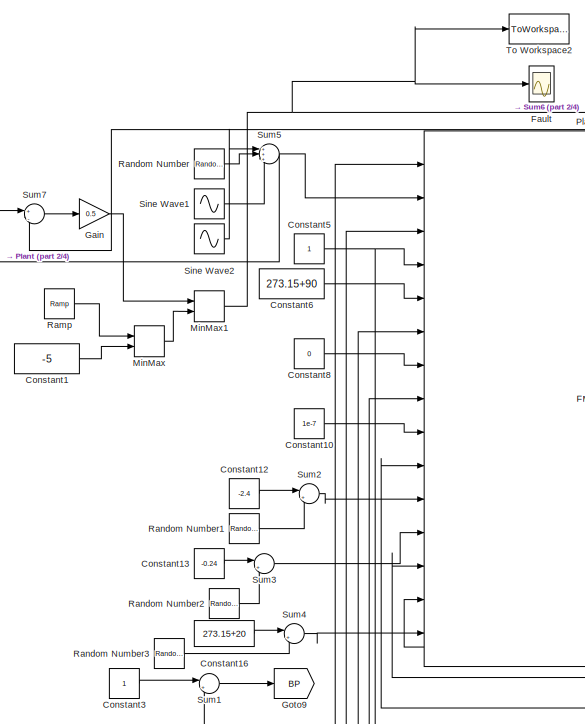
[diagram: root canvas - part 1/4, middle left region]
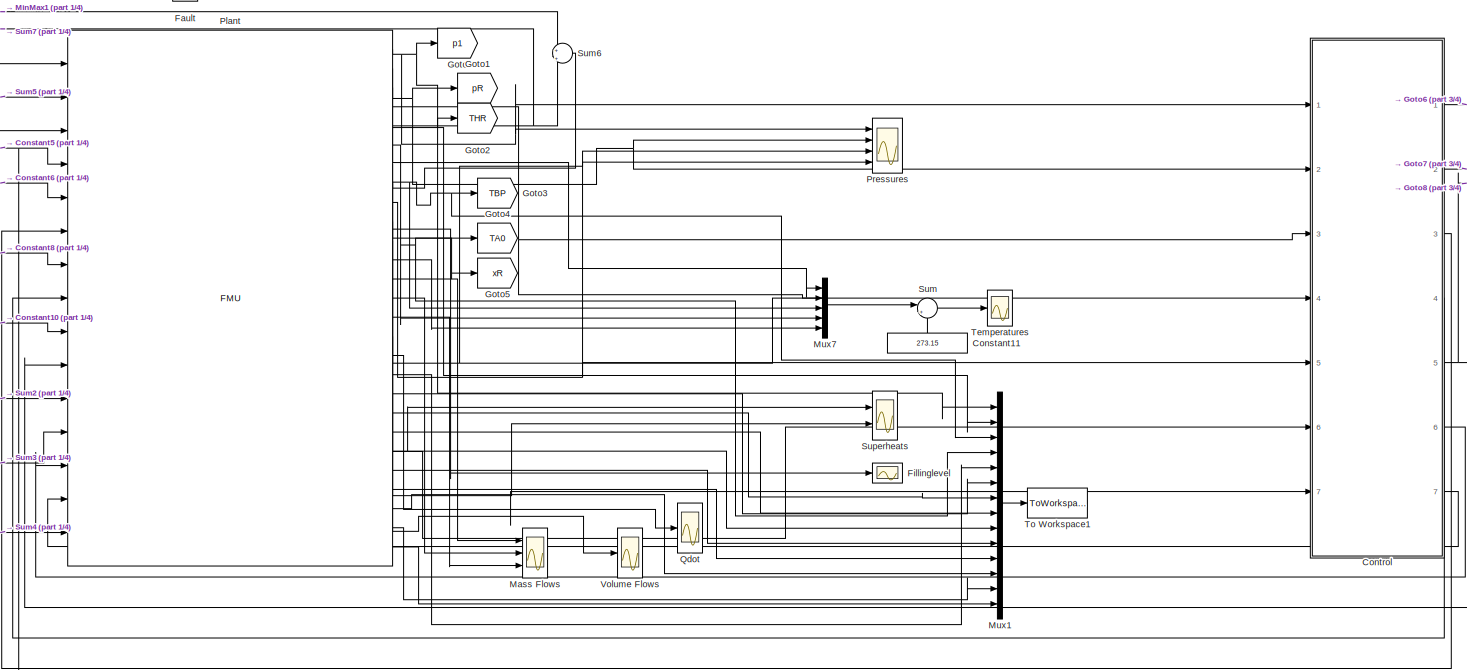
[diagram: root canvas - part 2/4, central region]
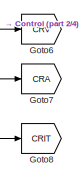
[diagram: root canvas - part 3/4, top right region]
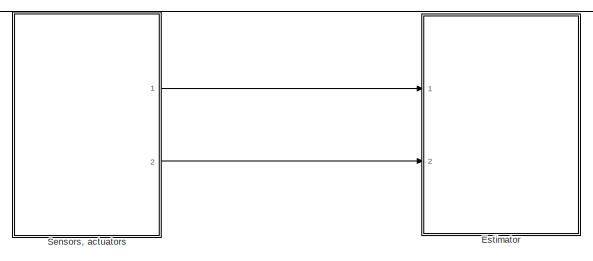
[diagram: root canvas - part 4/4, bottom center region]
MODEL slx_38feea61d01d
KIND model
CONFIG AbsTol = auto
CONFIG EnableMultiTasking = off
CONFIG FixedStep = 1
CONFIG InitFcn = clearvars\n% Initializing FMIKit and adding paths\nFMIKit.initialize\naddpath('<userpath>\Documents\Thesis\Codes\Linearization')\naddpath('<userpath>\Documents\Thesis\Codes\MatlabPlant')\n% 'Running modelcreation_simplified.m\nmodelcreation_simplified\n% Running substitution_simplified.m\n[A,B,C,D] = constantsave(A,B,C,D,Qcont);\nsubstitution_simplified\n% Running kfinit_simulink.m\nkfinit_simulink\n% Running...<+82ch>
CONFIG MaxStep = auto
CONFIG MinStep = auto
CONFIG RelTol = 1e-3
CONFIG SampleTimeConstraint = Unconstrained
CONFIG Solver = ode1
CONFIG SolverName = ode1
CONFIG StartTime = 0.0
CONFIG StopTime = 10000
BLOCK [Constant] Constant1
  Value = -5
BLOCK [Constant] Constant10
  Value = 1e-7
BLOCK [Constant] Constant11
  Value = 273.15
BLOCK [Constant] Constant12
  Value = -2.4
BLOCK [Constant] Constant13
  Value = -0.24
BLOCK [Constant] Constant16
  Value = 273.15+20
BLOCK [Constant] Constant3
BLOCK [Constant] Constant5
BLOCK [Constant] Constant6
  Value = 273.15+90
BLOCK [Constant] Constant8
  Value = 0
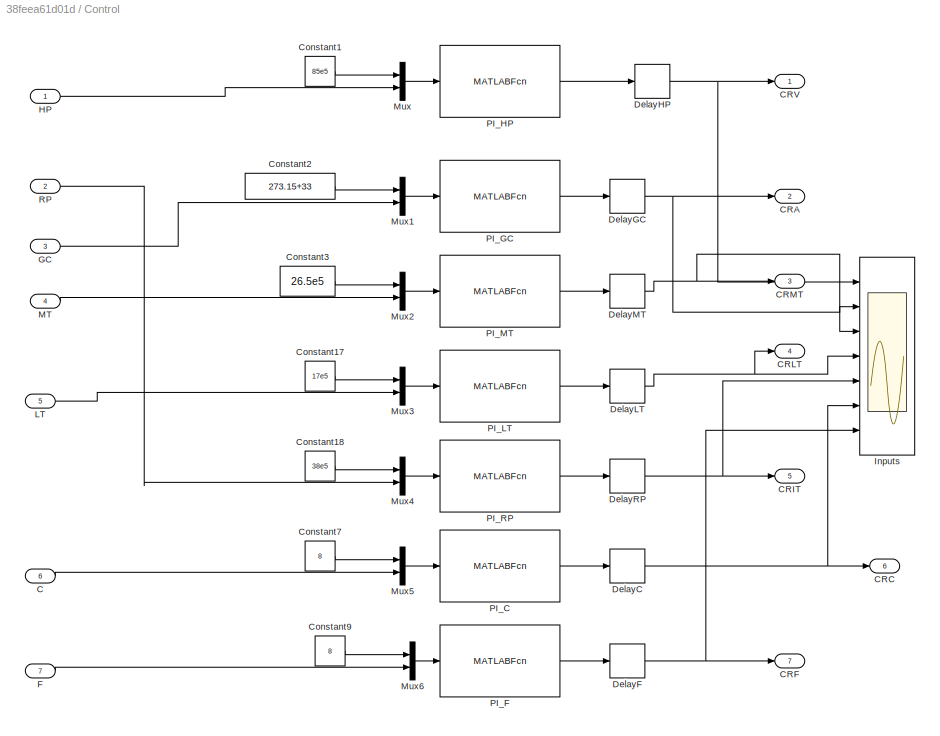
BLOCK [SubSystem] Control
  Ports = [7, 7]
  RequestExecContextInheritance = off
BLOCK [Inport] Control/C
  IconDisplay = Port number
  Port = 6
BLOCK [Outport] Control/CRA
  IconDisplay = Port number
  Port = 2
BLOCK [Outport] Control/CRC
  IconDisplay = Port number
  Port = 6
BLOCK [Outport] Control/CRF
  IconDisplay = Port number
  Port = 7
BLOCK [Outport] Control/CRIT
  IconDisplay = Port number
  Port = 5
BLOCK [Outport] Control/CRLT
  IconDisplay = Port number
  Port = 4
BLOCK [Outport] Control/CRMT
  IconDisplay = Port number
  Port = 3
BLOCK [Outport] Control/CRV
  IconDisplay = Port number
BLOCK [Constant] Control/Constant1
  Value = 85e5
BLOCK [Constant] Control/Constant17
  Value = 17e5
BLOCK [Constant] Control/Constant18
  Value = 38e5
BLOCK [Constant] Control/Constant2
  Value = 273.15+33
BLOCK [Constant] Control/Constant3
  Value = 26.5e5
BLOCK [Constant] Control/Constant7
  Value = 8
BLOCK [Constant] Control/Constant9
  Value = 8
BLOCK [Delay] Control/DelayC
  DelayLength = 1
  InitialCondition = 0.1
  InputPortMap = u0
  Ports = [1, 1]
BLOCK [Delay] Control/DelayF
  DelayLength = 1
  InitialCondition = 0.04
  InputPortMap = u0
  Ports = [1, 1]
BLOCK [Delay] Control/DelayGC
  DelayLength = 1
  InitialCondition = 0.625
  InputPortMap = u0
  Ports = [1, 1]
BLOCK [Delay] Control/DelayHP
  DelayLength = 1
  InitialCondition = 0.25
  InputPortMap = u0
  Ports = [1, 1]
BLOCK [Delay] Control/DelayLT
  DelayLength = 1
  InitialCondition = 0.3
  InputPortMap = u0
  Ports = [1, 1]
BLOCK [Delay] Control/DelayMT
  DelayLength = 1
  InitialCondition = 0.3
  InputPortMap = u0
  Ports = [1, 1]
BLOCK [Delay] Control/DelayRP
  DelayLength = 1
  InitialCondition = 0.45
  InputPortMap = u0
  Ports = [1, 1]
BLOCK [Inport] Control/F
  IconDisplay = Port number
  Port = 7
BLOCK [Inport] Control/GC
  IconDisplay = Port number
  Port = 3
BLOCK [Inport] Control/HP
  IconDisplay = Port number
BLOCK [Scope] Control/Inputs
  Floating = off
  NumInputPorts = 7
  Ports = [7]
  ScopeSpecificationString = Simulink.scopes.TimeScopeBlockCfg('CurrentConfiguration', extmgr.ConfigurationSet(extmgr.Configuration('Core','General UI',true),extmgr.Configuration('Core','Source UI',true),extmgr.Configuration('Sources','WiredSimulink',true,'DataLoggingVariableName','ScopeData1'),extmgr.Configuration('Visuals','Time Domain',true,'SerializedDisplays',{struct('MinYLimReal','-0.125','MaxYLimReal','1.125','YLabelRe...<+1434ch>
BLOCK [Inport] Control/LT
  IconDisplay = Port number
  Port = 5
BLOCK [Inport] Control/MT
  IconDisplay = Port number
  Port = 4
BLOCK [Mux] Control/Mux
  DisplayOption = bar
  Inputs = 2
  Ports = [2, 1]
BLOCK [Mux] Control/Mux1
  DisplayOption = bar
  Inputs = 2
  Ports = [2, 1]
BLOCK [Mux] Control/Mux2
  DisplayOption = bar
  Inputs = 2
  Ports = [2, 1]
BLOCK [Mux] Control/Mux3
  DisplayOption = bar
  Inputs = 2
  Ports = [2, 1]
BLOCK [Mux] Control/Mux4
  DisplayOption = bar
  Inputs = 2
  Ports = [2, 1]
BLOCK [Mux] Control/Mux5
  DisplayOption = bar
  Inputs = 2
  Ports = [2, 1]
BLOCK [Mux] Control/Mux6
  DisplayOption = bar
  Inputs = 2
  Ports = [2, 1]
BLOCK [MATLABFcn] Control/PI_C
  MATLABFcn = PI_C.react(u(1),u(2))
  Ports = [1, 1]
BLOCK [MATLABFcn] Control/PI_F
  MATLABFcn = PI_F.react(u(1),u(2))
  Ports = [1, 1]
BLOCK [MATLABFcn] Control/PI_GC
  MATLABFcn = PI_GC.react(u(1),u(2))
  Ports = [1, 1]
BLOCK [MATLABFcn] Control/PI_HP
  MATLABFcn = PI_HP.react(u(1),u(2))
  Ports = [1, 1]
BLOCK [MATLABFcn] Control/PI_LT
  MATLABFcn = PI_LT.react(u(1),u(2))
  Ports = [1, 1]
BLOCK [MATLABFcn] Control/PI_MT
  MATLABFcn = PI_MT.react(u(1),u(2))
  Ports = [1, 1]
BLOCK [MATLABFcn] Control/PI_RP
  MATLABFcn = PI_RP.react(u(1),u(2))
  Ports = [1, 1]
BLOCK [Inport] Control/RP
  IconDisplay = Port number
  Port = 2
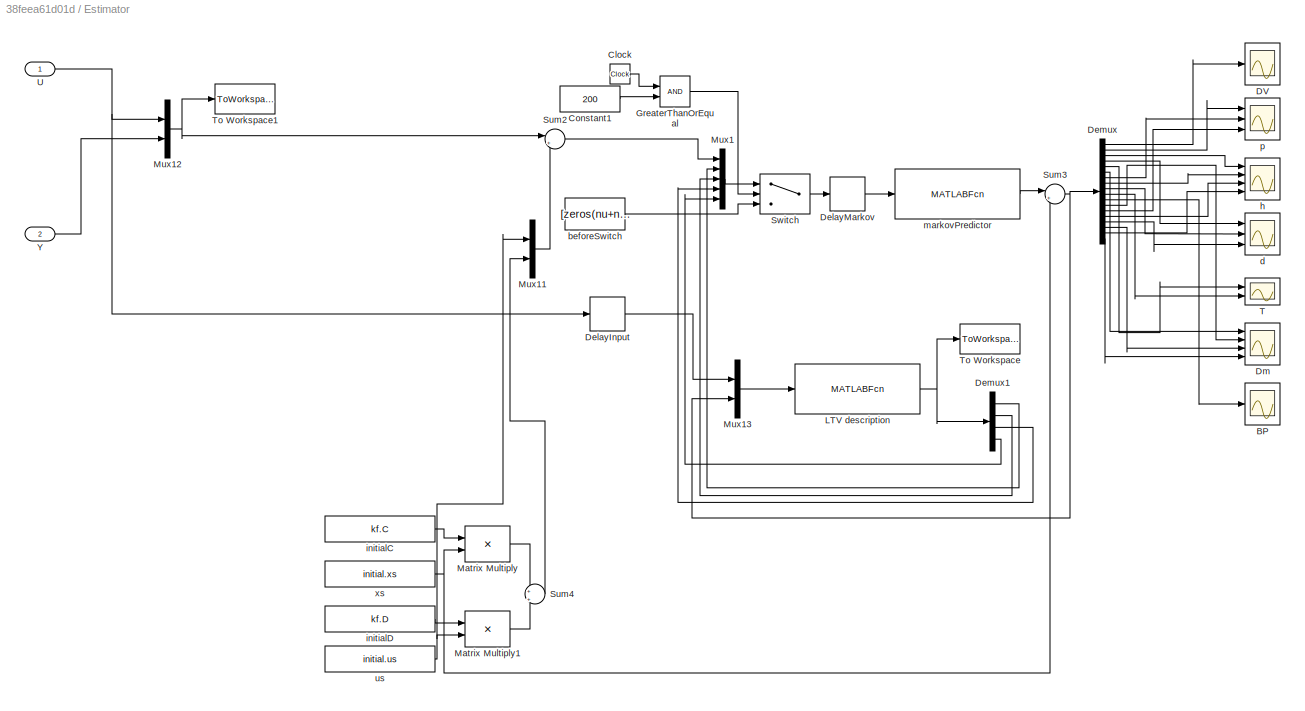
BLOCK [SubSystem] Estimator
  Ports = [2]
  RequestExecContextInheritance = off
BLOCK [Scope] Estimator/BP
  Commented = on
  Floating = off
  NumInputPorts = 1
  Ports = [1]
  ScopeSpecificationString = Simulink.scopes.TimeScopeBlockCfg('CurrentConfiguration', extmgr.ConfigurationSet(extmgr.Configuration('Core','General UI',true),extmgr.Configuration('Core','Source UI',true),extmgr.Configuration('Sources','WiredSimulink',true,'DataLoggingVariableName','ScopeData1'),extmgr.Configuration('Visuals','Time Domain',true,'SerializedDisplays',{struct('MinYLimReal','-0.00233','MaxYLimReal','0.0023','YLabe...<+1993ch>
BLOCK [Clock] Estimator/Clock
  Commented = on
BLOCK [Constant] Estimator/Constant1
  Commented = on
  Value = 200
BLOCK [Scope] Estimator/DV
  Commented = on
  Floating = off
  NumInputPorts = 1
  Ports = [1]
  ScopeSpecificationString = Simulink.scopes.TimeScopeBlockCfg('CurrentConfiguration', extmgr.ConfigurationSet(extmgr.Configuration('Core','General UI',true),extmgr.Configuration('Core','Source UI',true),extmgr.Configuration('Sources','WiredSimulink',true,'DataLoggingVariableName','ScopeData2'),extmgr.Configuration('Visuals','Time Domain',true,'SerializedDisplays',{struct('MinYLimReal','-21.49999','MaxYLimReal','28.21817','YL...<+1967ch>
BLOCK [Delay] Estimator/DelayInput
  Commented = on
  DelayLength = 1
  InitialCondition = [initial.us]
  InputPortMap = u0
  Ports = [1, 1]
BLOCK [Delay] Estimator/DelayMarkov
  Commented = on
  DelayLength = 1
  InitialCondition = [zeros(nu+ny,1); reshape(system.A,nx*nx,1); reshape(system.B,nx*nu,1); reshape(system.C,ny*nx,1); reshape(system.D,ny*nu,1)]
  InputPortMap = u0
  Ports = [1, 1]
BLOCK [Demux] Estimator/Demux
  Commented = on
  DisplayOption = bar
  Outputs = 18
  Ports = [1, 18]
BLOCK [Demux] Estimator/Demux1
  Commented = on
  DisplayOption = bar
  Outputs = [nx*nx; nx*nu; ny*nx; ny*nu]
  Ports = [1, 4]
BLOCK [Scope] Estimator/Dm
  Commented = on
  Floating = off
  NumInputPorts = 4
  Ports = [4]
  ScopeSpecificationString = Simulink.scopes.TimeScopeBlockCfg('CurrentConfiguration', extmgr.ConfigurationSet(extmgr.Configuration('Core','General UI',true),extmgr.Configuration('Core','Source UI',true),extmgr.Configuration('Sources','WiredSimulink',true,'DataLoggingVariableName','ScopeData6'),extmgr.Configuration('Visuals','Time Domain',true,'SerializedDisplays',{struct('MinYLimReal','-0.06329','MaxYLimReal','1.79961','YLab...<+2024ch>
BLOCK [RelationalOperator] Estimator/GreaterThanOrEqual
  Commented = on
  InputSameDT = off
  OutDataTypeStr = boolean
  Ports = [2, 1]
  RndMeth = Simplest
BLOCK [MATLABFcn] Estimator/LTV description
  Commented = on
  MATLABFcn = LTVsystemDescription(u(1:nu),u(nu+1:nu+nx))
  Ports = [1, 1]
BLOCK [Product] Estimator/Matrix Multiply
  Commented = on
  InputSameDT = off
  Multiplication = Matrix(*)
  OutDataTypeStr = Inherit: Inherit via internal rule
  Ports = [2, 1]
  RndMeth = Floor
  SaturateOnIntegerOverflow = off
BLOCK [Product] Estimator/Matrix Multiply1
  Commented = on
  InputSameDT = off
  Multiplication = Matrix(*)
  OutDataTypeStr = Inherit: Inherit via internal rule
  Ports = [2, 1]
  RndMeth = Floor
  SaturateOnIntegerOverflow = off
BLOCK [Mux] Estimator/Mux1
  Commented = on
  DisplayOption = bar
  Inputs = 5
  Ports = [5, 1]
BLOCK [Mux] Estimator/Mux11
  Commented = on
  DisplayOption = bar
  Inputs = 2
  Ports = [2, 1]
BLOCK [Mux] Estimator/Mux12
  DisplayOption = bar
  Inputs = 2
  Ports = [2, 1]
BLOCK [Mux] Estimator/Mux13
  Commented = on
  DisplayOption = bar
  Inputs = 2
  Ports = [2, 1]
BLOCK [Sum] Estimator/Sum2
  Commented = on
  IconShape = round
  InputSameDT = off
  Inputs = |+-
  OutDataTypeStr = Inherit: Inherit via internal rule
  Ports = [2, 1]
  SaturateOnIntegerOverflow = off
BLOCK [Sum] Estimator/Sum3
  Commented = on
  IconShape = round
  InputSameDT = off
  Inputs = |++
  OutDataTypeStr = Inherit: Inherit via internal rule
  Ports = [2, 1]
  SaturateOnIntegerOverflow = off
BLOCK [Sum] Estimator/Sum4
  Commented = on
  IconShape = round
  InputSameDT = off
  Inputs = +|+
  OutDataTypeStr = Inherit: Inherit via internal rule
  Ports = [2, 1]
  SaturateOnIntegerOverflow = off
BLOCK [Switch] Estimator/Switch
  Commented = on
  Criteria = u2 > Threshold
  InputSameDT = off
  SaturateOnIntegerOverflow = off
BLOCK [Scope] Estimator/T
  Commented = on
  Floating = off
  NumInputPorts = 2
  Ports = [2]
  ScopeSpecificationString = Simulink.scopes.TimeScopeBlockCfg('CurrentConfiguration', extmgr.ConfigurationSet(extmgr.Configuration('Core','General UI',true),extmgr.Configuration('Core','Source UI',true),extmgr.Configuration('Sources','WiredSimulink',true,'DataLoggingVariableName','ScopeData5'),extmgr.Configuration('Visuals','Time Domain',true,'SerializedDisplays',{struct('MinYLimReal','299.32935','MaxYLimReal','396.20779','Y...<+2010ch>
BLOCK [ToWorkspace] Estimator/To Workspace
  Commented = on
  FixptAsFi = on
  MaxDataPoints = inf
  Ports = [1]
  SampleTime = -1
  Save2DSignal = 3-D array (concatenate along third dimension)
  SaveFormat = Structure With Time
  VariableName = ABCD
BLOCK [ToWorkspace] Estimator/To Workspace1
  FixptAsFi = on
  MaxDataPoints = inf
  Ports = [1]
  SampleTime = -1
  Save2DSignal = 3-D array (concatenate along third dimension)
  SaveFormat = Structure With Time
  VariableName = uy_sim
BLOCK [Inport] Estimator/U
  IconDisplay = Port number
BLOCK [Inport] Estimator/Y
  IconDisplay = Port number
  Port = 2
BLOCK [Constant] Estimator/beforeSwitch
  Commented = on
  Value = [zeros(nu+ny,1); reshape(system.A,nx*nx,1); reshape(system.B,nx*nu,1); reshape(system.C,ny*nx,1); reshape(system.D,ny*nu,1)]
BLOCK [Scope] Estimator/d
  Commented = on
  Floating = off
  NumInputPorts = 3
  Ports = [3]
  ScopeSpecificationString = Simulink.scopes.TimeScopeBlockCfg('CurrentConfiguration', extmgr.ConfigurationSet(extmgr.Configuration('Core','General UI',true),extmgr.Configuration('Core','Source UI',true),extmgr.Configuration('Sources','WiredSimulink',true,'DataLoggingVariableName','ScopeData4'),extmgr.Configuration('Visuals','Time Domain',true,'SerializedDisplays',{struct('MinYLimReal','-155.39011','MaxYLimReal','710.40352','...<+2025ch>
BLOCK [Scope] Estimator/h
  Commented = on
  Floating = off
  NumInputPorts = 4
  Ports = [4]
  ScopeSpecificationString = Simulink.scopes.TimeScopeBlockCfg('CurrentConfiguration', extmgr.ConfigurationSet(extmgr.Configuration('Core','General UI',true),extmgr.Configuration('Core','Source UI',true),extmgr.Configuration('Sources','WiredSimulink',true,'DataLoggingVariableName','ScopeData3'),extmgr.Configuration('Visuals','Time Domain',true,'SerializedDisplays',{struct('MinYLimReal','-71857.47933','MaxYLimReal','556197.682...<+2086ch>
BLOCK [Constant] Estimator/initialC
  Commented = on
  Value = kf.C
BLOCK [Constant] Estimator/initialD
  Commented = on
  Value = kf.D
BLOCK [MATLABFcn] Estimator/markovPredictor
  Commented = on
  MATLABFcn = kf.markovPredictor(u(1:nu),u(nu+1:nu+ny),reshape(u(nu+ny+1:nu+ny+nx*nx),nx,nx),reshape(u(nu+ny+nx*nx+1:nu+ny+nx*nx+nx*nu),nx,nu),reshape(u(nu+ny+nx*nx+nx*nu+1:nu+ny+nx*nx+nx*nu+ny*nx),ny,nx), reshape(u(nu+ny+nx*nx+nx*nu+ny*nx+1:nu+ny+nx*nx+nx*nu+ny*nx+ny*nu),ny,nu))
  Ports = [1, 1]
BLOCK [Scope] Estimator/p
  Commented = on
  Floating = off
  NumInputPorts = 3
  Ports = [3]
  ScopeSpecificationString = Simulink.scopes.TimeScopeBlockCfg('CurrentConfiguration', extmgr.ConfigurationSet(extmgr.Configuration('Core','General UI',true),extmgr.Configuration('Core','Source UI',true),extmgr.Configuration('Sources','WiredSimulink',true,'DataLoggingVariableName','ScopeData1'),extmgr.Configuration('Visuals','Time Domain',true,'SerializedDisplays',{struct('MinYLimReal','2936675.10554','MaxYLimReal','11569924....<+2060ch>
BLOCK [Constant] Estimator/us
  Commented = on
  Value = initial.us
BLOCK [Constant] Estimator/xs
  Commented = on
  Value = initial.xs
BLOCK [Scope] Fault
  Floating = off
  NumInputPorts = 1
  Ports = [1]
  ScopeSpecificationString = Simulink.scopes.TimeScopeBlockCfg('CurrentConfiguration', extmgr.ConfigurationSet(extmgr.Configuration('Core','General UI',true),extmgr.Configuration('Core','Source UI',true),extmgr.Configuration('Sources','WiredSimulink',true,'DataLoggingVariableName','ScopeData1'),extmgr.Configuration('Visuals','Time Domain',true,'SerializedDisplays',{struct('MinYLimReal','-5.625','MaxYLimReal','0.625','YLabelRe...<+1400ch>
BLOCK [Scope] Fillinglevel
  Floating = off
  NumInputPorts = 1
  Ports = [1]
  ScopeSpecificationString = Simulink.scopes.TimeScopeBlockCfg('CurrentConfiguration', extmgr.ConfigurationSet(extmgr.Configuration('Core','General UI',true),extmgr.Configuration('Core','Source UI',true),extmgr.Configuration('Sources','WiredSimulink',true,'DataLoggingVariableName','ScopeData2'),extmgr.Configuration('Visuals','Time Domain',true,'SerializedDisplays',{struct('MinYLimReal','0.15019','MaxYLimReal','0.15206','YLabe...<+1397ch>
BLOCK [Gain] Gain
  Gain = 0.5
  OutDataTypeStr = Inherit: Inherit via internal rule
  ParamDataTypeStr = Inherit: Inherit via internal rule
  SaturateOnIntegerOverflow = off
BLOCK [Goto] Goto
  GotoTag = p1
  TagVisibility = global
BLOCK [Goto] Goto1
  GotoTag = pR
  TagVisibility = global
BLOCK [Goto] Goto2
  GotoTag = THR
  TagVisibility = global
BLOCK [Goto] Goto3
  GotoTag = TBP
  TagVisibility = global
BLOCK [Goto] Goto4
  GotoTag = TA0
  TagVisibility = global
BLOCK [Goto] Goto5
  GotoTag = xR
  TagVisibility = global
BLOCK [Goto] Goto6
  GotoTag = CRV
  TagVisibility = global
BLOCK [Goto] Goto7
  GotoTag = CRA
  TagVisibility = global
BLOCK [Goto] Goto8
  GotoTag = CRIT
  TagVisibility = global
BLOCK [Goto] Goto9
  GotoTag = BP
  TagVisibility = global
BLOCK [Scope] Mass Flows
  Floating = off
  NumInputPorts = 3
  Ports = [3]
  ScopeSpecificationString = Simulink.scopes.TimeScopeBlockCfg('CurrentConfiguration', extmgr.ConfigurationSet(extmgr.Configuration('Core','General UI',true),extmgr.Configuration('Core','Source UI',true),extmgr.Configuration('Sources','WiredSimulink',true,'DataLoggingVariableName','ScopeData1'),extmgr.Configuration('Visuals','Time Domain',true,'SerializedDisplays',{struct('MinYLimReal','-0.0977','MaxYLimReal','0.87932','YLabe...<+1408ch>
BLOCK [MinMax] MinMax
  Function = max
  InputSameDT = off
  Inputs = 2
  Ports = [2, 1]
  SaturateOnIntegerOverflow = off
BLOCK [MinMax] MinMax1
  Function = max
  InputSameDT = off
  Inputs = 2
  Ports = [2, 1]
  SaturateOnIntegerOverflow = off
BLOCK [Mux] Mux1
  DisplayOption = bar
  Inputs = 14
  Ports = [14, 1]
BLOCK [Mux] Mux7
  DisplayOption = bar
  Inputs = 5
  Ports = [5, 1]
BLOCK [Reference] Plant  REF=FMIKit_blocks/FMU
  Ports = [15, 27]
  SourceBlock = FMIKit_blocks/FMU
  SourceProductName = FMI Kit
  UserDataPersistent = on
BLOCK [Scope] Pressures
  Floating = off
  NumInputPorts = 4
  Ports = [4]
  ScopeSpecificationString = Simulink.scopes.TimeScopeBlockCfg('CurrentConfiguration', extmgr.ConfigurationSet(extmgr.Configuration('Core','General UI',true),extmgr.Configuration('Core','Source UI',true),extmgr.Configuration('Sources','WiredSimulink',true),extmgr.Configuration('Visuals','Time Domain',true,'SerializedDisplays',{struct('MinYLimReal','135898.44972','MaxYLimReal','14738688.72062','YLabelReal','','MinYLimMag','135...<+1430ch>
BLOCK [Scope] Qdot
  Floating = off
  NumInputPorts = 1
  Ports = [1]
  ScopeSpecificationString = Simulink.scopes.TimeScopeBlockCfg('CurrentConfiguration', extmgr.ConfigurationSet(extmgr.Configuration('Core','General UI',true),extmgr.Configuration('Core','Source UI',true),extmgr.Configuration('Sources','WiredSimulink',true,'DataLoggingVariableName','ScopeData1'),extmgr.Configuration('Visuals','Time Domain',true,'SerializedDisplays',{struct('MinYLimReal','-95663.00474','MaxYLimReal','-342.50797...<+1448ch>
BLOCK [Reference] Ramp  REF=simulink/Sources/Ramp
  Ports = [0, 1]
  SourceBlock = simulink/Sources/Ramp
  SourceProductBaseCode = SL
  SourceProductName = Simulink
  SourceType = Ramp
BLOCK [RandomNumber] Random Number
  SampleTime = 1
  Seed = 50
  Variance = (1/3)^2/Ts
BLOCK [RandomNumber] Random Number1
  SampleTime = 1
  Seed = 51
  Variance = (0.2/3)^2/Ts
BLOCK [RandomNumber] Random Number2
  SampleTime = 1
  Seed = 52
  Variance = (0.02/3)^2/Ts
BLOCK [RandomNumber] Random Number3
  SampleTime = 1
  Seed = 53
  Variance = (2/3)^2/Ts
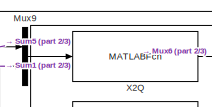
[diagram: Sensors, actuators - part 1/3, top center region]
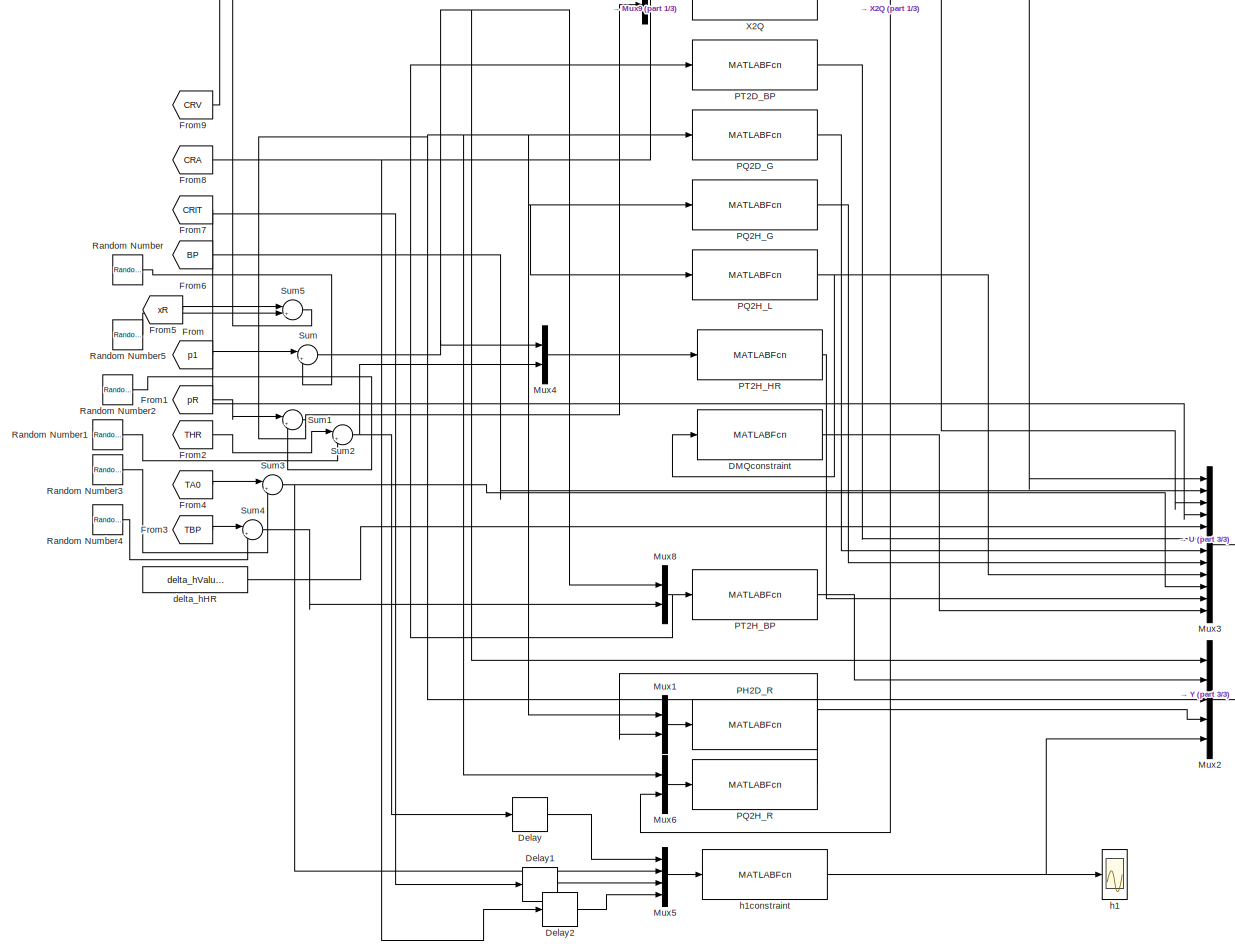
[diagram: Sensors, actuators - part 2/3, most of the canvas]
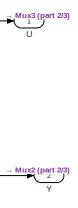
[diagram: Sensors, actuators - part 3/3, bottom right region]
BLOCK [SubSystem] Sensors, actuators
  Ports = [0, 2]
  RequestExecContextInheritance = off
BLOCK [MATLABFcn] Sensors, actuators/DMQconstraint
  MATLABFcn = 36e3/(440e3-u)+11e3/(440e3-u)
  Ports = [1, 1]
BLOCK [Delay] Sensors, actuators/Delay
  DelayLength = 200
  InitialCondition = 107+273
  InputPortMap = u0
  Ports = [1, 1]
BLOCK [Delay] Sensors, actuators/Delay1
  DelayLength = 200
  InitialCondition = 0.22
  InputPortMap = u0
  Ports = [1, 1]
BLOCK [Delay] Sensors, actuators/Delay2
  DelayLength = 200
  InitialCondition = 0.3
  InputPortMap = u0
  Ports = [1, 1]
BLOCK [From] Sensors, actuators/From
  GotoTag = p1
  TagVisibility = global
BLOCK [From] Sensors, actuators/From1
  GotoTag = pR
  TagVisibility = global
BLOCK [From] Sensors, actuators/From2
  GotoTag = THR
  TagVisibility = global
BLOCK [From] Sensors, actuators/From3
  GotoTag = TBP
  TagVisibility = global
BLOCK [From] Sensors, actuators/From4
  GotoTag = TA0
  TagVisibility = global
BLOCK [From] Sensors, actuators/From5
  GotoTag = xR
  TagVisibility = global
BLOCK [From] Sensors, actuators/From6
  GotoTag = BP
  TagVisibility = global
BLOCK [From] Sensors, actuators/From7
  GotoTag = CRIT
  TagVisibility = global
BLOCK [From] Sensors, actuators/From8
  GotoTag = CRA
  TagVisibility = global
BLOCK [From] Sensors, actuators/From9
  GotoTag = CRV
  TagVisibility = global
BLOCK [Mux] Sensors, actuators/Mux1
  DisplayOption = bar
  Inputs = 2
  Ports = [2, 1]
BLOCK [Mux] Sensors, actuators/Mux2
  DisplayOption = bar
  Inputs = 5
  Ports = [5, 1]
BLOCK [Mux] Sensors, actuators/Mux3
  DisplayOption = bar
  Inputs = 12
  Ports = [12, 1]
BLOCK [Mux] Sensors, actuators/Mux4
  DisplayOption = bar
  Inputs = 2
  Ports = [2, 1]
BLOCK [Mux] Sensors, actuators/Mux5
  DisplayOption = bar
  Ports = [4, 1]
BLOCK [Mux] Sensors, actuators/Mux6
  DisplayOption = bar
  Inputs = 2
  Ports = [2, 1]
BLOCK [Mux] Sensors, actuators/Mux8
  DisplayOption = bar
  Inputs = 2
  Ports = [2, 1]
BLOCK [Mux] Sensors, actuators/Mux9
  DisplayOption = bar
  Inputs = 2
  Ports = [2, 1]
BLOCK [MATLABFcn] Sensors, actuators/PH2D_R
  MATLABFcn = CoolProp.PropsSI('D','P',u(1),'H',u(2),'CO2')
  Ports = [1, 1]
BLOCK [MATLABFcn] Sensors, actuators/PQ2D_G
  MATLABFcn = CoolProp.PropsSI('D','P',u,'Q',1,'CO2')
  Ports = [1, 1]
BLOCK [MATLABFcn] Sensors, actuators/PQ2H_G
  MATLABFcn = CoolProp.PropsSI('H','P',u,'Q',1,'CO2')
  Ports = [1, 1]
BLOCK [MATLABFcn] Sensors, actuators/PQ2H_L
  MATLABFcn = CoolProp.PropsSI('H','P',u,'Q',0,'CO2')
  Ports = [1, 1]
BLOCK [MATLABFcn] Sensors, actuators/PQ2H_R
  MATLABFcn = CoolProp.PropsSI('H','P',u(1),'Q',u(2),'CO2')
  Ports = [1, 1]
BLOCK [MATLABFcn] Sensors, actuators/PT2D_BP
  MATLABFcn = CoolProp.PropsSI('D','P',u(1),'T',u(2),'CO2')
  Ports = [1, 1]
BLOCK [MATLABFcn] Sensors, actuators/PT2H_BP
  MATLABFcn = CoolProp.PropsSI('H','P',u(1),'T',u(2),'CO2')
  Ports = [1, 1]
BLOCK [MATLABFcn] Sensors, actuators/PT2H_HR
  MATLABFcn = CoolProp.PropsSI('H','P',u(1),'T',u(2),'CO2')
  Ports = [1, 1]
BLOCK [RandomNumber] Sensors, actuators/Random Number
  SampleTime = 1
  Variance = sigma2p/Ts
BLOCK [RandomNumber] Sensors, actuators/Random Number1
  SampleTime = 1
  Seed = 10
  Variance = sigma2T/Ts
BLOCK [RandomNumber] Sensors, actuators/Random Number2
  SampleTime = 1
  Seed = 1
  Variance = sigma2p/Ts
BLOCK [RandomNumber] Sensors, actuators/Random Number3
  SampleTime = 1
  Seed = 12
  Variance = sigma2T/Ts
BLOCK [RandomNumber] Sensors, actuators/Random Number4
  SampleTime = 1
  Seed = 11
  Variance = sigma2T/Ts
BLOCK [RandomNumber] Sensors, actuators/Random Number5
  SampleTime = 1
  Seed = 21
  Variance = sigma2x/Ts
BLOCK [Sum] Sensors, actuators/Sum
  IconShape = round
  InputSameDT = off
  Inputs = |++
  OutDataTypeStr = Inherit: Inherit via internal rule
  Ports = [2, 1]
  SaturateOnIntegerOverflow = off
BLOCK [Sum] Sensors, actuators/Sum1
  IconShape = round
  InputSameDT = off
  Inputs = |++
  OutDataTypeStr = Inherit: Inherit via internal rule
  Ports = [2, 1]
  SaturateOnIntegerOverflow = off
BLOCK [Sum] Sensors, actuators/Sum2
  IconShape = round
  InputSameDT = off
  Inputs = |++
  OutDataTypeStr = Inherit: Inherit via internal rule
  Ports = [2, 1]
  SaturateOnIntegerOverflow = off
BLOCK [Sum] Sensors, actuators/Sum3
  IconShape = round
  InputSameDT = off
  Inputs = |++
  OutDataTypeStr = Inherit: Inherit via internal rule
  Ports = [2, 1]
  SaturateOnIntegerOverflow = off
BLOCK [Sum] Sensors, actuators/Sum4
  IconShape = round
  InputSameDT = off
  Inputs = |++
  OutDataTypeStr = Inherit: Inherit via internal rule
  Ports = [2, 1]
  SaturateOnIntegerOverflow = off
BLOCK [Sum] Sensors, actuators/Sum5
  IconShape = round
  InputSameDT = off
  Inputs = |++
  OutDataTypeStr = Inherit: Inherit via internal rule
  Ports = [2, 1]
  SaturateOnIntegerOverflow = off
BLOCK [Outport] Sensors, actuators/U
  IconDisplay = Port number
BLOCK [MATLABFcn] Sensors, actuators/X2Q
  MATLABFcn = x2q(u(1),u(2))
  Ports = [1, 1]
BLOCK [Outport] Sensors, actuators/Y
  IconDisplay = Port number
  Port = 2
BLOCK [Constant] Sensors, actuators/delta_hHR
  Value = delta_hValues(1)
BLOCK [Scope] Sensors, actuators/h1
  Floating = off
  NumInputPorts = 1
  Ports = [1]
  ScopeSpecificationString = Simulink.scopes.TimeScopeBlockCfg('CurrentConfiguration', extmgr.ConfigurationSet(extmgr.Configuration('Core','General UI',true),extmgr.Configuration('Core','Source UI',true),extmgr.Configuration('Sources','WiredSimulink',true,'DataLoggingVariableName','ScopeData1'),extmgr.Configuration('Visuals','Time Domain',true,'SerializedDisplays',{struct('MinYLimReal','2.89736','MaxYLimReal','3.27152','YLabe...<+1417ch>
BLOCK [MATLABFcn] Sensors, actuators/h1constraint
  MATLABFcn = 1e5*(1.327157688246472+0.003577339990579*u(1)+0.003431954477368*u(2)+0.987387385770585*u(3)-3.177645289705887*u(4))
  Ports = [1, 1]
BLOCK [Sin] Sine Wave1
  Frequency = 2*pi*70/10000
  Phase = pi/2
  Ports = [0, 1]
  SampleTime = 0
BLOCK [Sin] Sine Wave2
  Amplitude = 10
  Bias = 273.15 + 20
  Frequency = 2*pi*5/10000
  Phase = pi/7
  Ports = [0, 1]
  SampleTime = 0
BLOCK [Sum] Sum
  IconShape = round
  InputSameDT = off
  Inputs = |+-
  OutDataTypeStr = Inherit: Inherit via internal rule
  Ports = [2, 1]
  SaturateOnIntegerOverflow = off
BLOCK [Sum] Sum1
  IconShape = round
  InputSameDT = off
  Inputs = |+-
  OutDataTypeStr = Inherit: Inherit via internal rule
  Ports = [2, 1]
  SaturateOnIntegerOverflow = off
BLOCK [Sum] Sum2
  IconShape = round
  InputSameDT = off
  Inputs = |+-
  OutDataTypeStr = Inherit: Inherit via internal rule
  Ports = [2, 1]
  SaturateOnIntegerOverflow = off
BLOCK [Sum] Sum3
  IconShape = round
  InputSameDT = off
  Inputs = |+-
  OutDataTypeStr = Inherit: Inherit via internal rule
  Ports = [2, 1]
  SaturateOnIntegerOverflow = off
BLOCK [Sum] Sum4
  IconShape = round
  InputSameDT = off
  Inputs = |+-
  OutDataTypeStr = Inherit: Inherit via internal rule
  Ports = [2, 1]
  SaturateOnIntegerOverflow = off
BLOCK [Sum] Sum5
  IconShape = round
  InputSameDT = off
  Inputs = +++
  OutDataTypeStr = Inherit: Inherit via internal rule
  Ports = [3, 1]
  SaturateOnIntegerOverflow = off
BLOCK [Sum] Sum6
  IconShape = round
  InputSameDT = off
  Inputs = +|+
  OutDataTypeStr = Inherit: Inherit via internal rule
  Ports = [2, 1]
  SaturateOnIntegerOverflow = off
BLOCK [Sum] Sum7
  IconShape = round
  InputSameDT = off
  Inputs = +|-
  OutDataTypeStr = Inherit: Inherit via internal rule
  Ports = [2, 1]
  SaturateOnIntegerOverflow = off
BLOCK [Scope] Superheats
  Floating = off
  NumInputPorts = 2
  Ports = [2]
  ScopeSpecificationString = Simulink.scopes.TimeScopeBlockCfg('CurrentConfiguration', extmgr.ConfigurationSet(extmgr.Configuration('Core','General UI',true),extmgr.Configuration('Core','Source UI',true),extmgr.Configuration('Sources','WiredSimulink',true,'DataLoggingVariableName','ScopeData1'),extmgr.Configuration('Visuals','Time Domain',true,'SerializedDisplays',{struct('MinYLimReal','-0.2944','MaxYLimReal','2.64956','YLabe...<+1409ch>
BLOCK [Scope] Temperatures
  Floating = off
  NumInputPorts = 1
  Ports = [1]
  ScopeSpecificationString = Simulink.scopes.TimeScopeBlockCfg('CurrentConfiguration', extmgr.ConfigurationSet(extmgr.Configuration('Core','General UI',true),extmgr.Configuration('Core','Source UI',true),extmgr.Configuration('Sources','WiredSimulink',true,'DataLoggingVariableName','ScopeData1'),extmgr.Configuration('Visuals','Time Domain',true,'SerializedDisplays',{struct('MinYLimReal','-9.97363','MaxYLimReal','170.15754','YL...<+1420ch>
BLOCK [ToWorkspace] To Workspace1
  FixptAsFi = on
  MaxDataPoints = inf
  Ports = [1]
  SampleTime = -1
  Save2DSignal = 3-D array (concatenate along third dimension)
  SaveFormat = Structure With Time
  VariableName = h1_sim
BLOCK [ToWorkspace] To Workspace2
  FixptAsFi = on
  MaxDataPoints = inf
  Ports = [1]
  SampleTime = -1
  Save2DSignal = 3-D array (concatenate along third dimension)
  SaveFormat = Structure With Time
  VariableName = fault_sim
BLOCK [Scope] Volume Flows
  Floating = off
  NumInputPorts = 1
  Ports = [1]
  ScopeSpecificationString = Simulink.scopes.TimeScopeBlockCfg('CurrentConfiguration', extmgr.ConfigurationSet(extmgr.Configuration('Core','General UI',true),extmgr.Configuration('Core','Source UI',true),extmgr.Configuration('Sources','WiredSimulink',true,'DataLoggingVariableName','ScopeData1'),extmgr.Configuration('Visuals','Time Domain',true,'SerializedDisplays',{struct('MinYLimReal','-0.81211','MaxYLimReal','7.30898','YLab...<+1401ch>
LINE Constant10:1 -> Plant:9
LINE Constant11:1 -> Sum:2
LINE Constant12:1 -> Sum2:1
LINE Constant13:1 -> Sum3:1
LINE Constant16:1 -> Sum4:1
LINE Constant1:1 -> MinMax:2
LINE Constant3:1 -> Sum1:1
NET Constant5:1 -> Plant:4, Sum1:2
LINE Constant6:1 -> Plant:5
LINE Constant8:1 -> Plant:7
LINE Control/C:1 -> Control/Mux5:2
LINE Control/Constant17:1 -> Control/Mux3:1
LINE Control/Constant18:1 -> Control/Mux4:1
LINE Control/Constant1:1 -> Control/Mux:1
LINE Control/Constant2:1 -> Control/Mux1:1
LINE Control/Constant3:1 -> Control/Mux2:1
LINE Control/Constant7:1 -> Control/Mux5:1
LINE Control/Constant9:1 -> Control/Mux6:1
NET Control/DelayC:1 -> Control/CRC:1, Control/Inputs:6
NET Control/DelayF:1 -> Control/CRF:1, Control/Inputs:7
NET Control/DelayGC:1 -> Control/CRA:1, Control/Inputs:2
NET Control/DelayHP:1 -> Control/CRV:1, Control/Inputs:1
NET Control/DelayLT:1 -> Control/CRLT:1, Control/Inputs:4
NET Control/DelayMT:1 -> Control/CRMT:1, Control/Inputs:3
NET Control/DelayRP:1 -> Control/CRIT:1, Control/Inputs:5
LINE Control/F:1 -> Control/Mux6:2
LINE Control/GC:1 -> Control/Mux1:2
LINE Control/HP:1 -> Control/Mux:2
LINE Control/LT:1 -> Control/Mux3:2
LINE Control/MT:1 -> Control/Mux2:2
LINE Control/Mux1:1 -> Control/PI_GC:1
LINE Control/Mux2:1 -> Control/PI_MT:1
LINE Control/Mux3:1 -> Control/PI_LT:1
LINE Control/Mux4:1 -> Control/PI_RP:1
LINE Control/Mux5:1 -> Control/PI_C:1
LINE Control/Mux6:1 -> Control/PI_F:1
LINE Control/Mux:1 -> Control/PI_HP:1
LINE Control/PI_C:1 -> Control/DelayC:1
LINE Control/PI_F:1 -> Control/DelayF:1
LINE Control/PI_GC:1 -> Control/DelayGC:1
LINE Control/PI_HP:1 -> Control/DelayHP:1
LINE Control/PI_LT:1 -> Control/DelayLT:1
LINE Control/PI_MT:1 -> Control/DelayMT:1
LINE Control/PI_RP:1 -> Control/DelayRP:1
LINE Control/RP:1 -> Control/Mux4:2
NET Control:1 -> Goto6:1, Plant:1
NET Control:2 -> Goto7:1, Plant:3
LINE Control:3 -> Plant:6
LINE Control:4 -> Plant:8
NET Control:5 -> Goto8:1, Plant:10
LINE Control:6 -> Plant:13
LINE Control:7 -> Plant:14
LINE Estimator/Clock:1 -> Estimator/GreaterThanOrEqual:1
LINE Estimator/Constant1:1 -> Estimator/GreaterThanOrEqual:2
LINE Estimator/DelayInput:1 -> Estimator/Mux13:1
LINE Estimator/DelayMarkov:1 -> Estimator/markovPredictor:1
LINE Estimator/Demux1:1 -> Estimator/Mux1:2
LINE Estimator/Demux1:2 -> Estimator/Mux1:3
LINE Estimator/Demux1:3 -> Estimator/Mux1:4
LINE Estimator/Demux1:4 -> Estimator/Mux1:5
LINE Estimator/Demux:1 -> Estimator/DV:1
LINE Estimator/Demux:10 -> Estimator/T:2
LINE Estimator/Demux:11 -> Estimator/BP:1
LINE Estimator/Demux:12 -> Estimator/Dm:2
LINE Estimator/Demux:13 -> Estimator/p:3
LINE Estimator/Demux:14 -> Estimator/h:3
LINE Estimator/Demux:15 -> Estimator/d:3
LINE Estimator/Demux:16 -> Estimator/Dm:3
LINE Estimator/Demux:17 -> Estimator/h:4
LINE Estimator/Demux:18 -> Estimator/Dm:4
LINE Estimator/Demux:2 -> Estimator/p:1
LINE Estimator/Demux:3 -> Estimator/h:1
LINE Estimator/Demux:4 -> Estimator/d:1
LINE Estimator/Demux:5 -> Estimator/T:1
LINE Estimator/Demux:6 -> Estimator/Dm:1
LINE Estimator/Demux:7 -> Estimator/p:2
LINE Estimator/Demux:8 -> Estimator/h:2
LINE Estimator/Demux:9 -> Estimator/d:2
LINE Estimator/GreaterThanOrEqual:1 -> Estimator/Switch:2
NET Estimator/LTV description:1 -> Estimator/Demux1:1, Estimator/To Workspace:1
LINE Estimator/Matrix Multiply1:1 -> Estimator/Sum4:2
LINE Estimator/Matrix Multiply:1 -> Estimator/Sum4:1
LINE Estimator/Mux11:1 -> Estimator/Sum2:2
NET Estimator/Mux12:1 -> Estimator/Sum2:1, Estimator/To Workspace1:1
LINE Estimator/Mux13:1 -> Estimator/LTV description:1
LINE Estimator/Mux1:1 -> Estimator/Switch:1
LINE Estimator/Sum2:1 -> Estimator/Mux1:1
NET Estimator/Sum3:1 -> Estimator/Demux:1, Estimator/Mux13:2
LINE Estimator/Sum4:1 -> Estimator/Mux11:2
LINE Estimator/Switch:1 -> Estimator/DelayMarkov:1
NET Estimator/U:1 -> Estimator/DelayInput:1, Estimator/Mux12:1
LINE Estimator/Y:1 -> Estimator/Mux12:2
LINE Estimator/beforeSwitch:1 -> Estimator/Switch:3
LINE Estimator/initialC:1 -> Estimator/Matrix Multiply:1
LINE Estimator/initialD:1 -> Estimator/Matrix Multiply1:1
LINE Estimator/markovPredictor:1 -> Estimator/Sum3:1
NET Estimator/us:1 -> Estimator/Matrix Multiply1:2, Estimator/Mux11:1
NET Estimator/xs:1 -> Estimator/Matrix Multiply:2, Estimator/Sum3:2
LINE Gain:1 -> MinMax1:1
NET MinMax1:1 -> Fault:1, Sum6:1, To Workspace2:1
LINE MinMax:1 -> MinMax1:2
LINE Mux1:1 -> To Workspace1:1
LINE Mux7:1 -> Sum:1
NET Plant:1 -> Control:1, Goto:1, Mux1:1, Pressures:1
NET Plant:10 -> Control:6, Superheats:1
NET Plant:11 -> Control:7, Superheats:2
LINE Plant:12 -> Mux7:5
LINE Plant:13 -> Mass Flows:1
LINE Plant:14 -> Mass Flows:2
LINE Plant:15 -> Mass Flows:3
LINE Plant:16 -> Volume Flows:1
LINE Plant:17 -> Qdot:1
LINE Plant:18 -> Mux1:5
LINE Plant:19 -> Mux1:6
NET Plant:2 -> Control:2, Goto1:1, Pressures:2
LINE Plant:20 -> Mux1:7
LINE Plant:21 -> Mux1:8
LINE Plant:22 -> Mux1:9
LINE Plant:23 -> Mux1:10
LINE Plant:24 -> Mux1:11
LINE Plant:25 -> Mux1:12
LINE Plant:26 -> Mux1:13
LINE Plant:27 -> Mux1:14
NET Plant:3 -> Goto2:1, Mux1:2, Mux7:1
NET Plant:4 -> Control:3, Mux7:2
NET Plant:5 -> Sum6:2, Sum7:2
NET Plant:6 -> Goto4:1, Mux1:4, Mux7:4
NET Plant:7 -> Fillinglevel:1, Goto5:1
NET Plant:8 -> Control:4, Pressures:3
NET Plant:9 -> Control:5, Pressures:4
LINE Ramp:1 -> MinMax:1
LINE Random Number1:1 -> Sum2:2
LINE Random Number2:1 -> Sum3:2
LINE Random Number3:1 -> Sum4:2
LINE Random Number:1 -> Sum5:2
LINE Sensors, actuators/DMQconstraint:1 -> Sensors, actuators/Mux3:12
LINE Sensors, actuators/Delay1:1 -> Sensors, actuators/Mux5:3
LINE Sensors, actuators/Delay2:1 -> Sensors, actuators/Mux5:4
LINE Sensors, actuators/Delay:1 -> Sensors, actuators/Mux5:1
LINE Sensors, actuators/From1:1 -> Sensors, actuators/Sum1:1
LINE Sensors, actuators/From2:1 -> Sensors, actuators/Sum2:1
LINE Sensors, actuators/From3:1 -> Sensors, actuators/Sum4:1
LINE Sensors, actuators/From4:1 -> Sensors, actuators/Sum3:1
LINE Sensors, actuators/From5:1 -> Sensors, actuators/Sum5:1
LINE Sensors, actuators/From6:1 -> Sensors, actuators/Mux3:2
NET Sensors, actuators/From7:1 -> Sensors, actuators/Delay1:1, Sensors, actuators/Mux3:4
NET Sensors, actuators/From8:1 -> Sensors, actuators/Delay2:1, Sensors, actuators/Mux3:1
LINE Sensors, actuators/From9:1 -> Sensors, actuators/Mux3:3
LINE Sensors, actuators/From:1 -> Sensors, actuators/Sum:1
LINE Sensors, actuators/Mux1:1 -> Sensors, actuators/PH2D_R:1
LINE Sensors, actuators/Mux2:1 -> Sensors, actuators/Y:1
LINE Sensors, actuators/Mux3:1 -> Sensors, actuators/U:1
LINE Sensors, actuators/Mux4:1 -> Sensors, actuators/PT2H_HR:1
LINE Sensors, actuators/Mux5:1 -> Sensors, actuators/h1constraint:1
LINE Sensors, actuators/Mux6:1 -> Sensors, actuators/PQ2H_R:1
NET Sensors, actuators/Mux8:1 -> Sensors, actuators/PT2D_BP:1, Sensors, actuators/PT2H_BP:1
LINE Sensors, actuators/Mux9:1 -> Sensors, actuators/X2Q:1
LINE Sensors, actuators/PQ2D_G:1 -> Sensors, actuators/Mux3:7
LINE Sensors, actuators/PQ2H_G:1 -> Sensors, actuators/Mux3:8
NET Sensors, actuators/PQ2H_L:1 -> Sensors, actuators/DMQconstraint:1, Sensors, actuators/Mux3:9
NET Sensors, actuators/PQ2H_R:1 -> Sensors, actuators/Mux1:2, Sensors, actuators/Mux2:4
LINE Sensors, actuators/PT2D_BP:1 -> Sensors, actuators/Mux3:6
LINE Sensors, actuators/PT2H_BP:1 -> Sensors, actuators/Mux2:2
LINE Sensors, actuators/PT2H_HR:1 -> Sensors, actuators/Mux3:11
LINE Sensors, actuators/Random Number1:1 -> Sensors, actuators/Sum2:2
LINE Sensors, actuators/Random Number2:1 -> Sensors, actuators/Sum1:2
LINE Sensors, actuators/Random Number3:1 -> Sensors, actuators/Sum3:2
LINE Sensors, actuators/Random Number4:1 -> Sensors, actuators/Sum4:2
LINE Sensors, actuators/Random Number5:1 -> Sensors, actuators/Sum5:2
LINE Sensors, actuators/Random Number:1 -> Sensors, actuators/Sum:2
NET Sensors, actuators/Sum1:1 -> Sensors, actuators/Mux1:1, Sensors, actuators/Mux2:3, Sensors, actuators/Mux6:1, Sensors, actuators/Mux9:2, Sensors, actuators/PQ2D_G:1, Sensors, actuators/PQ2H_G:1, Sensors, actuators/PQ2H_L:1
NET Sensors, actuators/Sum2:1 -> Sensors, actuators/Delay:1, Sensors, actuators/Mux4:2
NET Sensors, actuators/Sum3:1 -> Sensors, actuators/Mux3:10, Sensors, actuators/Mux5:2
LINE Sensors, actuators/Sum4:1 -> Sensors, actuators/Mux8:2
LINE Sensors, actuators/Sum5:1 -> Sensors, actuators/Mux9:1
NET Sensors, actuators/Sum:1 -> Sensors, actuators/Mux2:1, Sensors, actuators/Mux4:1, Sensors, actuators/Mux8:1
LINE Sensors, actuators/X2Q:1 -> Sensors, actuators/Mux6:2
LINE Sensors, actuators/delta_hHR:1 -> Sensors, actuators/Mux3:5
NET Sensors, actuators/h1constraint:1 -> Sensors, actuators/Mux2:5, Sensors, actuators/h1:1
LINE Sensors, actuators:1 -> Estimator:1
LINE Sensors, actuators:2 -> Estimator:2
LINE Sine Wave1:1 -> Sum5:3
LINE Sine Wave2:1 -> Sum5:1
LINE Sum1:1 -> Goto9:1
LINE Sum2:1 -> Plant:11
LINE Sum3:1 -> Plant:12
LINE Sum4:1 -> Plant:15
NET Sum5:1 -> Plant:2, Sum7:1
NET Sum6:1 -> Goto3:1, Mux1:3, Mux7:3
LINE Sum7:1 -> Gain:1
LINE Sum:1 -> Temperatures:1
note: NET lines group one-source signal fan-out (src -> all destinations, sorted); 1:1 wires keep LINE
